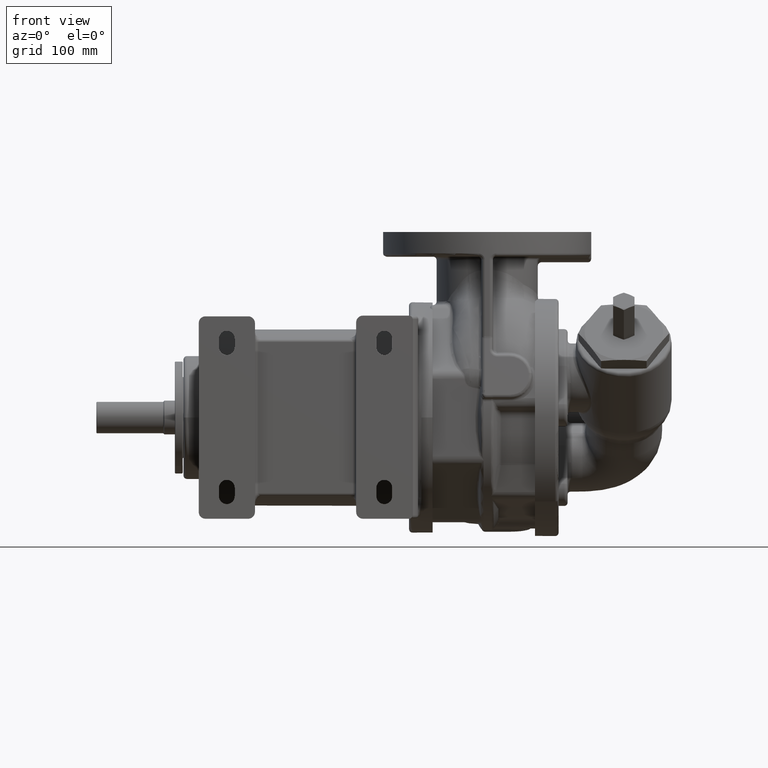
[diagram: clean part render]
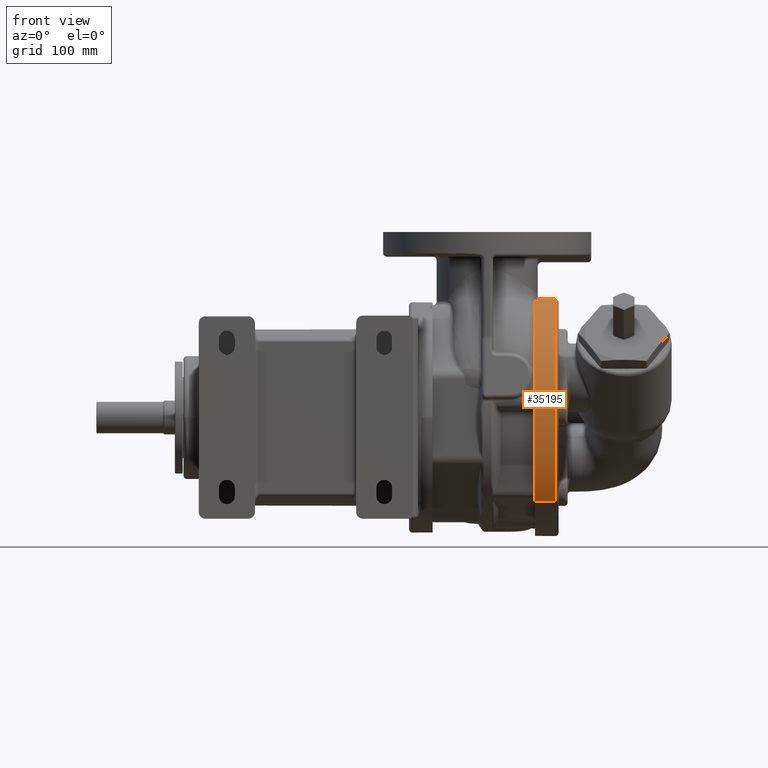
[diagram: same view with one face highlighted and labeled with its STEP entity id]
A machine part, front view. The second image highlights one B-rep face of the part: STEP entity #35195.
In plain terms, the highlighted cylindrical surface (partial cylindrical patch) has radius 105.5 mm, axis along (1, 0, 0).
Its self-contained STEP definition (entity closure, byte-faithful):
#3212=CARTESIAN_POINT('',(1.E2,-2.207372502745E1,1.031649197325E2));
#3236=CARTESIAN_POINT('',(1.002839666874E2,-2.056581658139E1,1.034760706074E2));
#3237=CARTESIAN_POINT('',(1.002512426575E2,-2.073690293658E1,1.034420672810E2));
#3238=CARTESIAN_POINT('',(1.001864996648E2,-2.107670053998E1,1.033736508085E2));
#3239=CARTESIAN_POINT('',(1.000917017347E2,-2.157947983712E1,1.032698538893E2));
#3240=CARTESIAN_POINT('',(1.000302552298E2,-2.190976994252E1,1.032000004505E2));
#3241=CARTESIAN_POINT('',(1.E2,-2.207372502745E1,1.031649197325E2));
#3243=CARTESIAN_POINT('',(1.E2,-6.161466553923E-14,3.571381883923E-14));
#3244=DIRECTION('',(1.E0,0.E0,0.E0));
#3245=DIRECTION('',(0.E0,-2.092296211133E-1,9.778665377488E-1));
#3246=AXIS2_PLACEMENT_3D('',#3243,#3244,#3245);
#3466=DIRECTION('',(-1.E0,1.973729821556E-14,-1.736882242969E-14));
#3467=VECTOR('',#3466,1.8E1);
#3468=CARTESIAN_POINT('',(1.18E2,-7.459976541518E1,-7.459976541518E1));
#3469=LINE('',#3468,#3467);
#3475=DIRECTION('',(-1.E0,-1.500034664382E-14,1.657933050107E-14));
#3476=VECTOR('',#3475,1.8E1);
#3477=CARTESIAN_POINT('',(1.18E2,7.459976541518E1,7.459976541518E1));
#3478=LINE('',#3477,#3476);
#3524=CARTESIAN_POINT('',(1.E2,-6.161466553923E-14,3.571381883923E-14));
#3525=DIRECTION('',(1.E0,0.E0,0.E0));
#3526=DIRECTION('',(0.E0,7.071067811865E-1,7.071067811865E-1));
#3527=AXIS2_PLACEMENT_3D('',#3524,#3525,#3526);
#3977=CARTESIAN_POINT('',(1.E2,1.656648799643E1,1.041911775318E2));
#3979=CARTESIAN_POINT('',(1.E2,1.656648799643E1,1.041911775318E2));
#3980=CARTESIAN_POINT('',(1.001331960397E2,1.613768900057E1,1.042593569457E2));
#3981=CARTESIAN_POINT('',(1.003895847087E2,1.527944863696E1,1.043904166272E2));
#3982=CARTESIAN_POINT('',(1.007471310583E2,1.398140551393E1,1.045721704322E2));
#3983=CARTESIAN_POINT('',(1.010707442619E2,1.270029742982E1,1.047353493580E2));
#3984=CARTESIAN_POINT('',(1.013574825526E2,1.145661668801E1,1.048784933250E2));
#3985=CARTESIAN_POINT('',(1.016048008864E2,1.027443524887E1,1.050005442129E2));
#3986=CARTESIAN_POINT('',(1.018079431807E2,9.202255427644E0,1.050995840671E2));
#3987=CARTESIAN_POINT('',(1.019797867187E2,8.200608113557E0,1.051823372450E2));
#3988=CARTESIAN_POINT('',(1.021298077374E2,7.227562573329E0,1.052536174288E2));
#3989=CARTESIAN_POINT('',(1.022608823256E2,6.269981849568E0,1.053149527866E2));
#3990=CARTESIAN_POINT('',(1.023737697357E2,5.326672474400E0,1.053668368366E2));
#3991=CARTESIAN_POINT('',(1.024694764703E2,4.393332867365E0,1.054098532546E2));
#3992=CARTESIAN_POINT('',(1.025487067210E2,3.466099142384E0,1.054444032461E2));
#3993=CARTESIAN_POINT('',(1.026120389456E2,2.540548357965E0,1.054707603261E2));
#3994=CARTESIAN_POINT('',(1.026598873790E2,1.613439890095E0,1.054890293116E2));
#3995=CARTESIAN_POINT('',(1.026816795005E2,9.906978735330E-1,1.054958103597E2));
#3996=CARTESIAN_POINT('',(1.026900114309E2,6.784772745676E-1,1.054978183120E2));
#4003=CARTESIAN_POINT('',(1.18E2,-9.496454179682E-14,4.631803839904E-14));
#4004=DIRECTION('',(-1.E0,0.E0,0.E0));
#4005=DIRECTION('',(0.E0,-7.071067811865E-1,-7.071067811865E-1));
#4006=AXIS2_PLACEMENT_3D('',#4003,#4004,#4005);
#7299=CARTESIAN_POINT('',(1.026900114309E2,6.784772745676E-1,1.054978183120E2));
#7300=CARTESIAN_POINT('',(1.026999317532E2,3.067695767616E-1,1.055002088375E2));
#7301=CARTESIAN_POINT('',(1.027117016925E2,-4.236183605832E-1,
1.055009709263E2));
#7302=CARTESIAN_POINT('',(1.027082204095E2,-1.476991254760E0,1.054913536437E2));
#7303=CARTESIAN_POINT('',(1.026865674208E2,-2.496762441939E0,1.054720477688E2));
#7304=CARTESIAN_POINT('',(1.026490175449E2,-3.488029686522E0,1.054438394742E2));
#7305=CARTESIAN_POINT('',(1.025972905254E2,-4.458116017202E0,1.054072374594E2));
#7306=CARTESIAN_POINT('',(1.025319535180E2,-5.422368990752E0,1.053620447161E2));
#7307=CARTESIAN_POINT('',(1.024526630452E2,-6.395830215547E0,1.053074785629E2));
#7308=CARTESIAN_POINT('',(1.023592045123E2,-7.384880284488E0,1.052428011749E2));
#7309=CARTESIAN_POINT('',(1.022513226356E2,-8.394563023880E0,1.051671645276E2));
#7310=CARTESIAN_POINT('',(1.021279561512E2,-9.435219132056E0,1.050790368118E2));
#7311=CARTESIAN_POINT('',(1.019874535721E2,-1.051891699402E1,1.049762697086E2));
#7312=CARTESIAN_POINT('',(1.018275348264E2,-1.165943684310E1,1.048559514914E2));
#7313=CARTESIAN_POINT('',(1.016461696104E2,-1.286677057326E1,1.047149524084E2));
#7314=CARTESIAN_POINT('',(1.014396181685E2,-1.416078958492E1,1.045482533712E2));
#7315=CARTESIAN_POINT('',(1.012026938294E2,-1.556724657283E1,1.043486595891E2));
#7316=CARTESIAN_POINT('',(1.009335797243E2,-1.709128510460E1,1.041104695388E2));
#7317=CARTESIAN_POINT('',(1.006317787684E2,-1.873500954315E1,1.038280704389E2));
#7318=CARTESIAN_POINT('',(1.004037991476E2,-1.993930535649E1,1.036005893957E2));
#7319=CARTESIAN_POINT('',(1.002839666874E2,-2.056581658139E1,1.034760706074E2));
#22737=CARTESIAN_POINT('',(1.18E2,7.459976541518E1,7.459976541518E1));
#22738=CARTESIAN_POINT('',(1.18E2,-7.459976541518E1,-7.459976541518E1));
#22739=VERTEX_POINT('',#22737);
#22740=VERTEX_POINT('',#22738);
#22745=CARTESIAN_POINT('',(1.E2,7.459976541518E1,7.459976541518E1));
#22746=VERTEX_POINT('',#22745);
#22747=CARTESIAN_POINT('',(1.E2,-7.459976541518E1,-7.459976541518E1));
#22748=VERTEX_POINT('',#22747);
#22922=VERTEX_POINT('',#3977);
#22923=VERTEX_POINT('',#3996);
#22924=VERTEX_POINT('',#7319);
#22925=VERTEX_POINT('',#3212);
#35178=CARTESIAN_POINT('',(8.11E1,-2.659729546876E-14,2.457938830143E-14));
#35179=DIRECTION('',(1.E0,0.E0,0.E0));
#35180=DIRECTION('',(0.E0,-7.071067811865E-1,-7.071067811865E-1));
#35181=AXIS2_PLACEMENT_3D('',#35178,#35179,#35180);
#35182=CYLINDRICAL_SURFACE('',#35181,1.055E2);
#35183=ORIENTED_EDGE('',*,*,#35169,.F.);
#35184=ORIENTED_EDGE('',*,*,#34546,.F.);
#35185=ORIENTED_EDGE('',*,*,#34381,.F.);
#35187=ORIENTED_EDGE('',*,*,#35186,.F.);
#35188=ORIENTED_EDGE('',*,*,#34377,.T.);
#35189=ORIENTED_EDGE('',*,*,#33192,.F.);
#35190=ORIENTED_EDGE('',*,*,#33139,.F.);
#35192=ORIENTED_EDGE('',*,*,#35191,.F.);
#35193=EDGE_LOOP('',(#35183,#35184,#35185,#35187,#35188,#35189,#35190,#35192));
#35194=FACE_OUTER_BOUND('',#35193,.F.);
#35195=ADVANCED_FACE('',(#35194),#35182,.T.);
#3242=B_SPLINE_CURVE_WITH_KNOTS('',3,(#3236,#3237,#3238,#3239,#3240,#3241),
.UNSPECIFIED.,.F.,.F.,(4,1,1,4),(0.E0,3.333333333333E-1,6.666666666667E-1,1.E0),
.UNSPECIFIED.);
#3247=CIRCLE('',#3246,1.055E2);
#3528=CIRCLE('',#3527,1.055E2);
#3997=B_SPLINE_CURVE_WITH_KNOTS('',3,(#3979,#3980,#3981,#3982,#3983,#3984,#3985,
#3986,#3987,#3988,#3989,#3990,#3991,#3992,#3993,#3994,#3995,#3996),
.UNSPECIFIED.,.F.,.F.,(4,1,1,1,1,1,1,1,1,1,1,1,1,1,1,4),(0.E0,6.666666666667E-2,
1.333333333333E-1,2.E-1,2.666666666667E-1,3.333333333333E-1,4.E-1,
4.666666666667E-1,5.333333333333E-1,6.E-1,6.666666666667E-1,7.333333333333E-1,
8.E-1,8.666666666667E-1,9.333333333333E-1,1.E0),.UNSPECIFIED.);
#4007=CIRCLE('',#4006,1.055E2);
#7320=B_SPLINE_CURVE_WITH_KNOTS('',3,(#7299,#7300,#7301,#7302,#7303,#7304,#7305,
#7306,#7307,#7308,#7309,#7310,#7311,#7312,#7313,#7314,#7315,#7316,#7317,#7318,
#7319),.UNSPECIFIED.,.F.,.F.,(4,1,1,1,1,1,1,1,1,1,1,1,1,1,1,1,1,1,4),(0.E0,
5.555555555556E-2,1.111111111111E-1,1.666666666667E-1,2.222222222222E-1,
2.777777777778E-1,3.333333333333E-1,3.888888888889E-1,4.444444444444E-1,5.E-1,
5.555555555556E-1,6.111111111111E-1,6.666666666667E-1,7.222222222222E-1,
7.777777777778E-1,8.333333333333E-1,8.888888888889E-1,9.444444444444E-1,1.E0),
.UNSPECIFIED.);
#33139=EDGE_CURVE('',#22924,#22925,#3242,.T.);
#33192=EDGE_CURVE('',#22925,#22748,#3247,.T.);
#34377=EDGE_CURVE('',#22740,#22748,#3469,.T.);
#34381=EDGE_CURVE('',#22739,#22746,#3478,.T.);
#34546=EDGE_CURVE('',#22746,#22922,#3528,.T.);
#35169=EDGE_CURVE('',#22922,#22923,#3997,.T.);
#35186=EDGE_CURVE('',#22740,#22739,#4007,.T.);
#35191=EDGE_CURVE('',#22923,#22924,#7320,.T.);